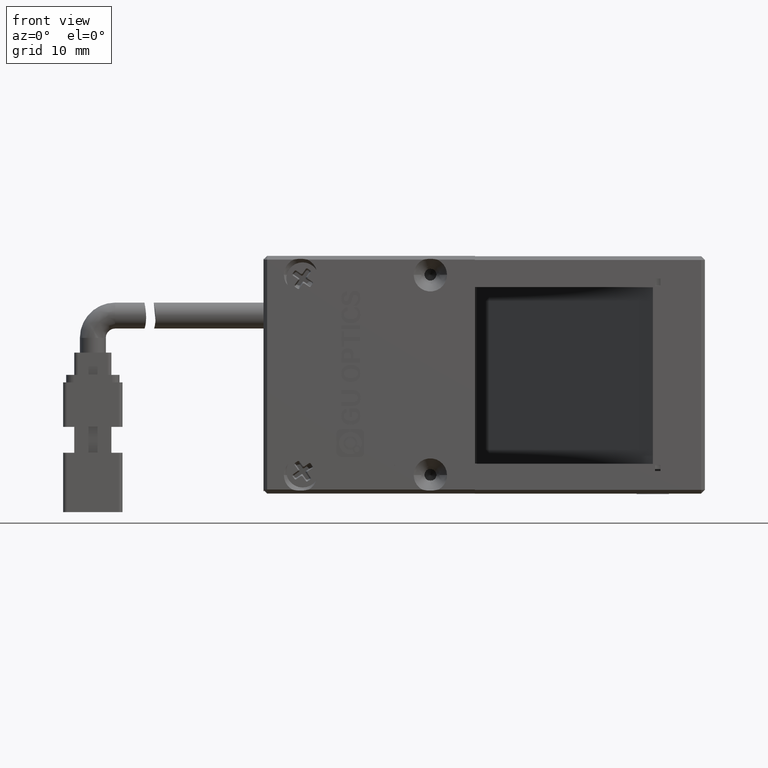
[diagram: clean part render]
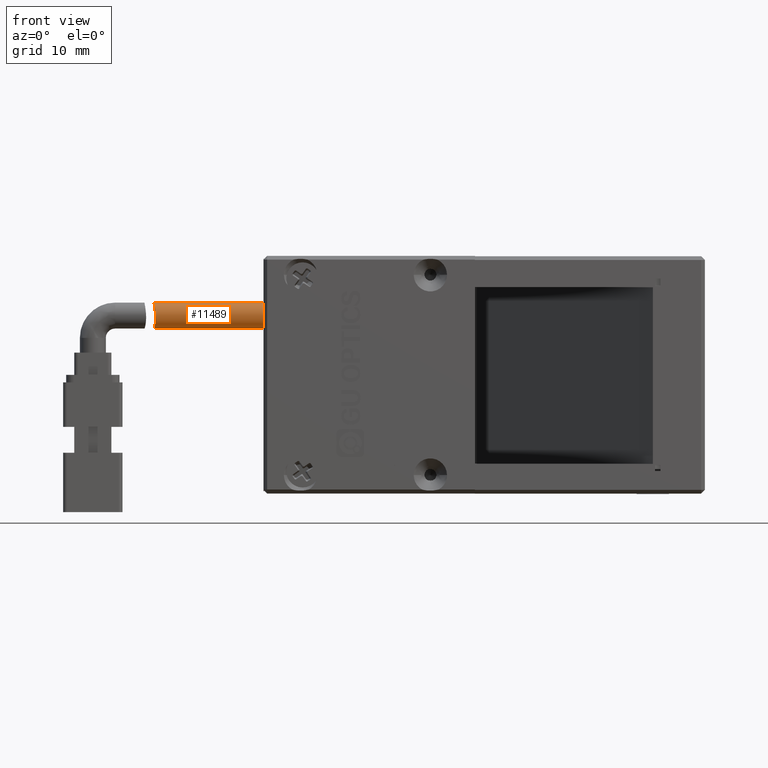
[diagram: same view with one face highlighted and labeled with its STEP entity id]
A machine part, front view. The second image highlights one B-rep face of the part: STEP entity #11489.
In plain terms, the highlighted cylindrical surface (edge-blend (fillet) strip) has radius 1.75 mm, axis along (1, -0, 0).
Its self-contained STEP definition (entity closure, byte-faithful):
#2442 = ORIENTED_EDGE ( 'NONE', *, *, #74254, .T. ) ;
#2752 = CARTESIAN_POINT ( 'NONE',  ( -75.21475000896633400, -29.12773613617592300, 44.33256731635287900 ) ) ;
#2760 = CIRCLE ( 'NONE', #23055, 1.749999999999994700 ) ;
#2806 = AXIS2_PLACEMENT_3D ( 'NONE', #66932, #30426, #54986 ) ;
#3007 = CARTESIAN_POINT ( 'NONE',  ( -75.06478690534959200, -29.74974886343177600, 41.68556510019261900 ) ) ;
#8940 = CARTESIAN_POINT ( 'NONE',  ( -75.18124731795215600, -29.41818841552621000, 44.15156947914891100 ) ) ;
#9219 = CARTESIAN_POINT ( 'NONE',  ( -75.12167765251949400, -29.41841700949476000, 41.37003943280626600 ) ) ;
#9793 = VERTEX_POINT ( 'NONE', #60301 ) ;
#11489 = ADVANCED_FACE ( 'NONE', ( #65399 ), #73983, .T. ) ;
#11641 = ORIENTED_EDGE ( 'NONE', *, *, #35028, .T. ) ;
#13392 = VERTEX_POINT ( 'NONE', #44109 ) ;
#14686 = CARTESIAN_POINT ( 'NONE',  ( -60.46895663278034800, -28.35000000000004800, 42.76069164156517400 ) ) ;
#15078 = CARTESIAN_POINT ( 'NONE',  ( -75.12790063596946800, -29.74898333304699300, 43.83637732218365800 ) ) ;
#15329 = CARTESIAN_POINT ( 'NONE',  ( -75.16357311254927300, -29.12718801504659900, 41.18858342993967600 ) ) ;
#18932 = ORIENTED_EDGE ( 'NONE', *, *, #50125, .T. ) ;
#20802 = DIRECTION ( 'NONE',  ( 0.0000000000000000000, 0.0000000000000000000, -1.000000000000000000 ) ) ;
#20931 = CARTESIAN_POINT ( 'NONE',  ( -75.24979656527762000, -28.35000000000005500, 44.51069164156518100 ) ) ;
#21181 = CARTESIAN_POINT ( 'NONE',  ( -75.04946352956291400, -30.05336183850036100, 43.22196160176326900 ) ) ;
#21469 = CARTESIAN_POINT ( 'NONE',  ( -75.21267607194063500, -28.58216196590008100, 41.01069164156518100 ) ) ;
#23055 = AXIS2_PLACEMENT_3D ( 'NONE', #14686, #57380, #20802 ) ;
#27356 = CARTESIAN_POINT ( 'NONE',  ( -75.01610466682616600, -30.10013987440145700, 42.64839931652353000 ) ) ;
#28049 = DIRECTION ( 'NONE',  ( 1.000000000000000000, -7.511771070445245000E-017, 1.110223024625156000E-016 ) ) ;
#29956 = CARTESIAN_POINT ( 'NONE',  ( -80.46895663278029100, -28.35000000000004800, 41.01069164156516700 ) ) ;
#30426 = DIRECTION ( 'NONE',  ( 1.000000000000000000, -7.511771070445245000E-017, 1.110223024625156000E-016 ) ) ;
#32421 = EDGE_CURVE ( 'NONE', #13392, #9793, #45735, .T. ) ;
#33237 = CARTESIAN_POINT ( 'NONE',  ( -75.24747826602801100, -28.58010815194679600, 44.49926208926274300 ) ) ;
#33512 = CARTESIAN_POINT ( 'NONE',  ( -75.01638552186020100, -30.04402303286434900, 42.30687512205457100 ) ) ;
#35028 = EDGE_CURVE ( 'NONE', #76170, #43696, #75699, .T. ) ;
#39363 = CARTESIAN_POINT ( 'NONE',  ( -75.23180642067387700, -28.91582674093660500, 44.42066354908175900 ) ) ;
#39617 = CARTESIAN_POINT ( 'NONE',  ( -75.04039349134559700, -29.87879467830239800, 41.87850769709317000 ) ) ;
#42406 = ORIENTED_EDGE ( 'NONE', *, *, #32421, .F. ) ;
#42859 = EDGE_LOOP ( 'NONE', ( #42406, #18932, #11641, #2442 ) ) ;
#43301 = VECTOR ( 'NONE', #48390, 1000.000000000000000 ) ;
#43696 = VERTEX_POINT ( 'NONE', #60220 ) ;
#44109 = CARTESIAN_POINT ( 'NONE',  ( -75.24979656527762000, -28.35000000000005500, 44.51069164156518100 ) ) ;
#45507 = CARTESIAN_POINT ( 'NONE',  ( -75.20449501598436400, -29.22817295752798500, 44.27871005608209000 ) ) ;
#45735 = LINE ( 'NONE', #58442, #60031 ) ;
#45774 = CARTESIAN_POINT ( 'NONE',  ( -75.10703494243418300, -29.50627131645799000, 41.44209005924505400 ) ) ;
#48390 = DIRECTION ( 'NONE',  ( 1.000000000000000000, -7.511771070445245000E-017, 1.110223024625156000E-016 ) ) ;
#50125 = EDGE_CURVE ( 'NONE', #13392, #76170, #51074, .T. ) ;
#51074 = B_SPLINE_CURVE_WITH_KNOTS ( 'NONE', 3,
 ( #20931, #57497, #33237, #75869, #39363, #2752, #45507, #8940, #51631, #15078, #57751, #21181, #63865, #27356, #70005, #33512, #76115, #39617, #3007, #45774, #9219, #51905, #15329, #58014, #21469, #64123 ),
 .UNSPECIFIED., .F., .F.,
 ( 4, 2, 2, 2, 2, 2, 2, 2, 2, 2, 2, 2, 4 ),
 ( 2.525795506525165700E-017, 0.0003431607499797136000, 0.0006863214999594019400, 0.001029482249939090200, 0.001372642999918778500, 0.002058964499878155300, 0.002745285999837531900, 0.003088446749817220400, 0.003431607499796908400, 0.004117928999756285400, 0.004461089749735973500, 0.004804250499715661600, 0.005490571999675042000 ),
 .UNSPECIFIED. ) ;
#51631 = CARTESIAN_POINT ( 'NONE',  ( -75.16818628628563200, -29.50784148837611200, 44.07782549968393200 ) ) ;
#51905 = CARTESIAN_POINT ( 'NONE',  ( -75.14988803486865300, -29.22948308175657300, 41.24347775393837900 ) ) ;
#54986 = DIRECTION ( 'NONE',  ( 0.0000000000000000000, 0.0000000000000000000, -1.000000000000000000 ) ) ;
#57380 = DIRECTION ( 'NONE',  ( -1.000000000000000000, 7.511771070445245000E-017, -1.110223024625156000E-016 ) ) ;
#57497 = CARTESIAN_POINT ( 'NONE',  ( -75.24979656527762000, -28.46605289952142200, 44.51069164156516700 ) ) ;
#57751 = CARTESIAN_POINT ( 'NONE',  ( -75.09849908607780800, -29.87890535841451400, 43.64197475955383300 ) ) ;
#58014 = CARTESIAN_POINT ( 'NONE',  ( -75.19814806417512900, -28.81078525760704400, 41.05706060593944800 ) ) ;
#58442 = CARTESIAN_POINT ( 'NONE',  ( -80.46895663278029100, -28.35000000000004800, 44.51069164156516700 ) ) ;
#60031 = VECTOR ( 'NONE', #28049, 1000.000000000000000 ) ;
#60220 = CARTESIAN_POINT ( 'NONE',  ( -60.46895663278034800, -28.35000000000004800, 41.01069164156518100 ) ) ;
#60301 = CARTESIAN_POINT ( 'NONE',  ( -60.46895663278034800, -28.35000000000004800, 44.51069164156516700 ) ) ;
#63865 = CARTESIAN_POINT ( 'NONE',  ( -75.02957640392287400, -30.09971625548136800, 42.99175356018047000 ) ) ;
#64123 = CARTESIAN_POINT ( 'NONE',  ( -75.21267607194063500, -28.35000000000004800, 41.01069164156516700 ) ) ;
#65399 = FACE_OUTER_BOUND ( 'NONE', #42859, .T. ) ;
#66932 = CARTESIAN_POINT ( 'NONE',  ( -80.46895663278029100, -28.35000000000004800, 42.76069164156516700 ) ) ;
#70005 = CARTESIAN_POINT ( 'NONE',  ( -75.01423164773351000, -30.08877347109109800, 42.53193350403678600 ) ) ;
#73983 = CYLINDRICAL_SURFACE ( 'NONE', #2806, 1.750000000000001600 ) ;
#74254 = EDGE_CURVE ( 'NONE', #43696, #9793, #2760, .T. ) ;
#74784 = CARTESIAN_POINT ( 'NONE',  ( -75.21267607194063500, -28.35000000000004800, 41.01069164156516700 ) ) ;
#75699 = LINE ( 'NONE', #29956, #43301 ) ;
#75869 = CARTESIAN_POINT ( 'NONE',  ( -75.23853965150257700, -28.80440064185948000, 44.45453254905246600 ) ) ;
#76115 = CARTESIAN_POINT ( 'NONE',  ( -75.02032664050646800, -30.01087066472078700, 42.19744297965590400 ) ) ;
#76170 = VERTEX_POINT ( 'NONE', #74784 ) ;